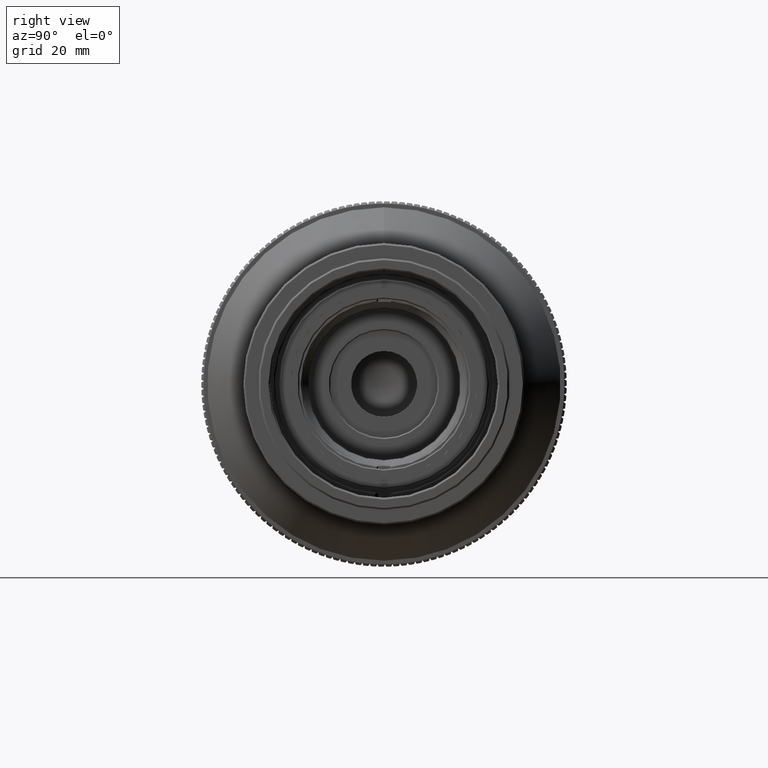
[diagram: clean part render]
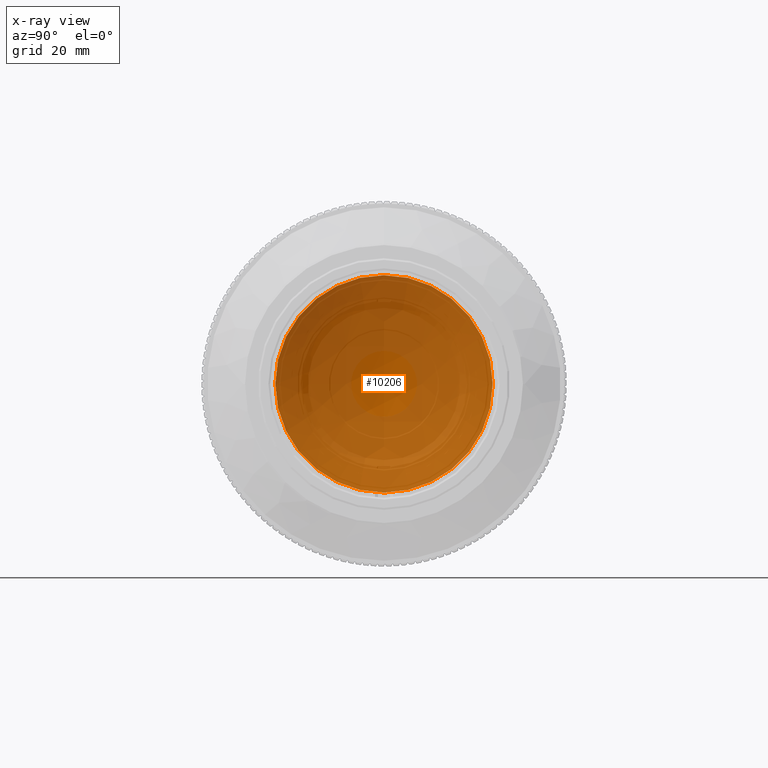
[diagram: x-ray — body ghosted, one internal face saturated and labeled with its STEP entity id]
A machine part, right view, then the same camera in x-ray: the body is ghosted and one INTERNAL B-rep face — a face not visible from any outside direction — is saturated and labeled: STEP entity #10206.
In plain terms, the highlighted face is a freeform B-spline surface patch.
Its self-contained STEP definition (entity closure, byte-faithful):
#2989 = CARTESIAN_POINT ( 'NONE',  ( 2.841013612691358300, -6.552862751697075400, -19.01985268582169700 ) ) ;
#3319 = CARTESIAN_POINT ( 'NONE',  ( 2.853252066894576900, 6.642622695971938100, -19.01390836454266900 ) ) ;
#3672 = AXIS2_PLACEMENT_3D ( 'NONE', #16214, #22490, #58819 ) ;
#6918 = ORIENTED_EDGE ( 'NONE', *, *, #10071, .T. ) ;
#7119 = CIRCLE ( 'NONE', #19330, 18.14644660940672700 ) ;
#9600 = CARTESIAN_POINT ( 'NONE',  ( -3.113158271544318500, -6.552862751697075400, -6.761117583404797000 ) ) ;
#10071 = EDGE_CURVE ( 'NONE', #35481, #66581, #84972, .T. ) ;
#10206 = ADVANCED_FACE ( 'NONE', ( #16645 ), #54472, .T. ) ;
#16214 = CARTESIAN_POINT ( 'NONE',  ( 4.122480605879806200, 0.0000000000000000000, 0.0000000000000000000 ) ) ;
#16645 = FACE_OUTER_BOUND ( 'NONE', #37084, .T. ) ;
#19330 = AXIS2_PLACEMENT_3D ( 'NONE', #24310, #31536, #52500 ) ;
#22490 = DIRECTION ( 'NONE',  ( -1.000000000000000000, -0.0000000000000000000, -0.0000000000000000000 ) ) ;
#23730 = CARTESIAN_POINT ( 'NONE',  ( 8.083418870993588400, -18.41271945471968200, 16.57218412887430500 ) ) ;
#24310 = CARTESIAN_POINT ( 'NONE',  ( 4.122480605879806200, 0.0000000000000000000, 0.0000000000000000000 ) ) ;
#24667 = CARTESIAN_POINT ( 'NONE',  ( -3.097146339641719600, -6.552862751697075400, 6.867106539946259900 ) ) ;
#24969 = CARTESIAN_POINT ( 'NONE',  ( 2.881606308540625600, -18.41271945471968200, -5.862681079207525200 ) ) ;
#31536 = DIRECTION ( 'NONE',  ( -1.000000000000000000, -0.0000000000000000000, -0.0000000000000000000 ) ) ;
#35481 = VERTEX_POINT ( 'NONE', #81296 ) ;
#37084 = EDGE_LOOP ( 'NONE', ( #78784, #6918 ) ) ;
#39088 = CARTESIAN_POINT ( 'NONE',  ( -3.083052017722489600, 6.642622695971939000, 6.864960346271408800 ) ) ;
#45062 = CARTESIAN_POINT ( 'NONE',  ( 8.117606468907538900, 18.49052477388838500, 16.55547952160864300 ) ) ;
#45975 = CARTESIAN_POINT ( 'NONE',  ( 8.044570924588475300, -18.41271945471968200, -16.49244064977906300 ) ) ;
#52500 = DIRECTION ( 'NONE',  ( 0.0000000000000000000, 0.0000000000000000000, -1.000000000000000000 ) ) ;
#52867 = CARTESIAN_POINT ( 'NONE',  ( 2.885814878523523600, -6.552862751697075400, 19.11181658960368800 ) ) ;
#53480 = CARTESIAN_POINT ( 'NONE',  ( 2.898039330877080700, 6.642622695971938100, 19.10584352661990300 ) ) ;
#54472 =( BOUNDED_SURFACE ( )  B_SPLINE_SURFACE ( 3, 3, ( 
 ( #59753, #80994, #67221, #45062 ),
 ( #3319, #67526, #39088, #53480 ),
 ( #2989, #9600, #24667, #52867 ),
 ( #45975, #24969, #88552, #23730 ) ),
 .UNSPECIFIED., .F., .F., .F. ) 
 B_SPLINE_SURFACE_WITH_KNOTS ( ( 4, 4 ),
 ( 4, 4 ),
 ( 0.0000000000000000000, 1.000000000000000000 ),
 ( 0.0000000000000000000, 1.000000000000000000 ),
 .UNSPECIFIED. ) 
 GEOMETRIC_REPRESENTATION_ITEM ( )  RATIONAL_B_SPLINE_SURFACE ( (
 ( 1.000000000000000000, 0.9326641762049613400, 0.9326641762049613400, 1.000000000000000000),
 ( 0.9322189364173043600, 0.8694472063763103400, 0.8694472063763103400, 0.9322189364173043600),
 ( 0.9322189364173043600, 0.8694472063763103400, 0.8694472063763103400, 0.9322189364173043600),
 ( 1.000000000000000000, 0.9326641762049613400, 0.9326641762049613400, 1.000000000000000000) ) ) 
 REPRESENTATION_ITEM ( '' )  SURFACE ( )  );
#58357 = CARTESIAN_POINT ( 'NONE',  ( 4.122480605879806200, 0.0000000000000000000, -18.14644660940672700 ) ) ;
#58819 = DIRECTION ( 'NONE',  ( 0.0000000000000000000, 0.0000000000000000000, -1.000000000000000000 ) ) ;
#59753 = CARTESIAN_POINT ( 'NONE',  ( 8.078797680870614800, 18.49052477388838500, -16.47581642319768500 ) ) ;
#66581 = VERTEX_POINT ( 'NONE', #58357 ) ;
#67221 = CARTESIAN_POINT ( 'NONE',  ( 2.934907510829719800, 18.49052477388838200, 5.948583755069539500 ) ) ;
#67526 = CARTESIAN_POINT ( 'NONE',  ( -3.099058945376679500, 6.642622695971939000, -6.759004514718893300 ) ) ;
#78784 = ORIENTED_EDGE ( 'NONE', *, *, #83329, .T. ) ;
#80994 = CARTESIAN_POINT ( 'NONE',  ( 2.921037285073208700, 18.49052477388838200, -5.856771551278654900 ) ) ;
#81296 = CARTESIAN_POINT ( 'NONE',  ( 4.122480605879806200, 2.243947677016716300E-015, 18.14644660940672700 ) ) ;
#83329 = EDGE_CURVE ( 'NONE', #66581, #35481, #7119, .T. ) ;
#84972 = CIRCLE ( 'NONE', #3672, 18.14644660940672700 ) ;
#88552 = CARTESIAN_POINT ( 'NONE',  ( 2.895490529462524600, -18.41271945471968200, 5.954585922224264700 ) ) ;